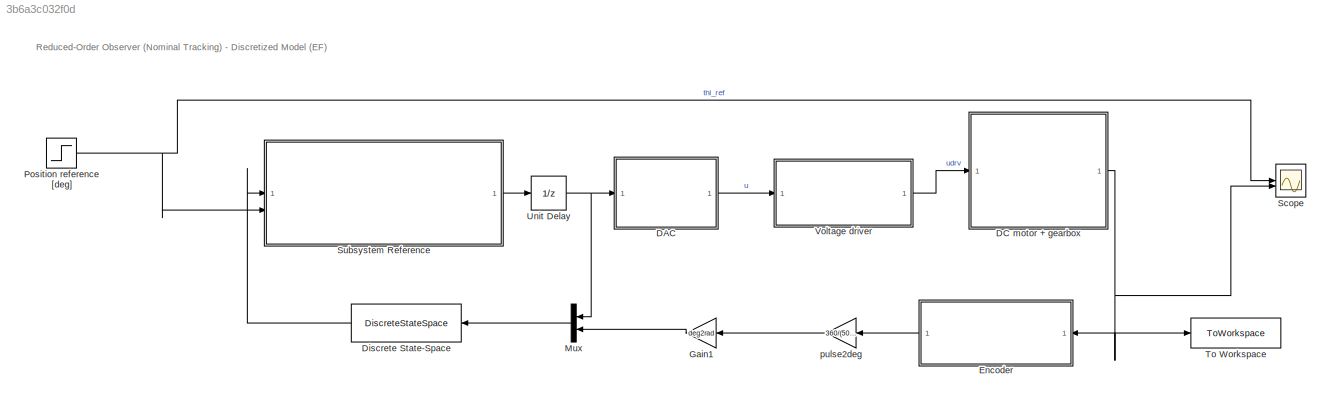
MODEL slx_3b6a3c032f0d
KIND model
CONFIG AbsTol = auto
CONFIG EnableMultiTasking = off
CONFIG FixedStep = auto
CONFIG MaxStep = auto
CONFIG MinStep = auto
CONFIG RelTol = 1e-3
CONFIG SampleTimeConstraint = Unconstrained
CONFIG SolverName = ode45
CONFIG StartTime = 0.0
CONFIG StopTime = 5
BLOCK [SubSystem] DAC
  ReferencedSubsystem = DAC
BLOCK [SubSystem] DC motor + gearbox
  ReferencedSubsystem = DC_motor_and_gearbox
BLOCK [DiscreteStateSpace] Discrete State-Space
  A = -0.617518353278843
  B = [4.60319351098823 -1076.45747529499]
  C = [0;0.0427627481107283]
  D = [0 1;0.514652680207781 28.4585827262108]
  SampleTime = Ts
BLOCK [SubSystem] Encoder
  NameLocation = top
  ReferencedSubsystem = Encoder
BLOCK [Gain] Gain1
  Gain = deg2rad
  NameLocation = top
BLOCK [Mux] Mux
  DisplayOption = bar
  Inputs = 2
BLOCK [Step] Position reference [deg]
  After = 50
  SampleTime = 0
  Time = 0
BLOCK [Scope] Scope
  Floating = off
  NumInputPorts = 2
  ScopeSpecificationString = Simulink.scopes.TimeScopeBlockCfg('CurrentConfiguration', extmgr.ConfigurationSet(extmgr.Configuration('Core','General UI',true),extmgr.Configuration('Core','Source UI',true),extmgr.Configuration('Sources','WiredSimulink',true),extmgr.Configuration('Visuals','Time Domain',true,'SerializedDisplays',{struct('MinYLimReal','64.41941','MaxYLimReal','74.42808','YLabelReal','','MinYLimMag','64.41941','Ma...<+1826ch>
BLOCK [SubSystem] Subsystem Reference
  ReferencedSubsystem = controllerSSNominalReducedOrderObserver
BLOCK [ToWorkspace] To Workspace
  FixptAsFi = on
  MaxDataPoints = inf
  SampleTime = -1
  SaveFormat = Timeseries
  VariableName = pos_measured
BLOCK [UnitDelay] Unit Delay
  HasFrameUpgradeWarning = on
  SampleTime = -1
BLOCK [SubSystem] Voltage driver
  ReferencedSubsystem = Voltage_driver
BLOCK [Gain] pulse2deg
  Gain = 360/(500*4)
  NameLocation = top
ANNOTATION (root): Reduced-Order Observer (Nominal Tracking) - Discretized Model (EF)
LINE DAC:1 -> Voltage driver:1
NET DC motor + gearbox:1 -> Encoder:1, Scope:2, To Workspace:1
LINE Discrete State-Space:1 -> Subsystem Reference:1
LINE Encoder:1 -> pulse2deg:1
LINE Gain1:1 -> Mux:2
LINE Mux:1 -> Discrete State-Space:1
NET Position reference [deg]:1 -> Scope:1, Subsystem Reference:2
LINE Subsystem Reference:1 -> Unit Delay:1
NET Unit Delay:1 -> DAC:1, Mux:1
LINE Voltage driver:1 -> DC motor + gearbox:1
LINE pulse2deg:1 -> Gain1:1
note: NET lines group one-source signal fan-out (src -> all destinations, sorted); 1:1 wires keep LINE
